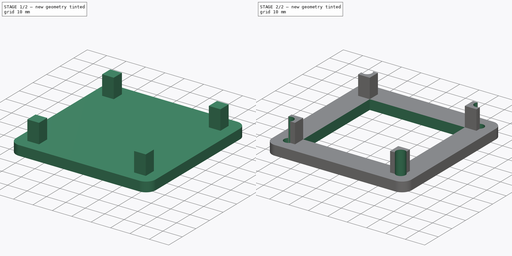
[diagram: build sequence overview — one tinted view per stage of 2, left to right]
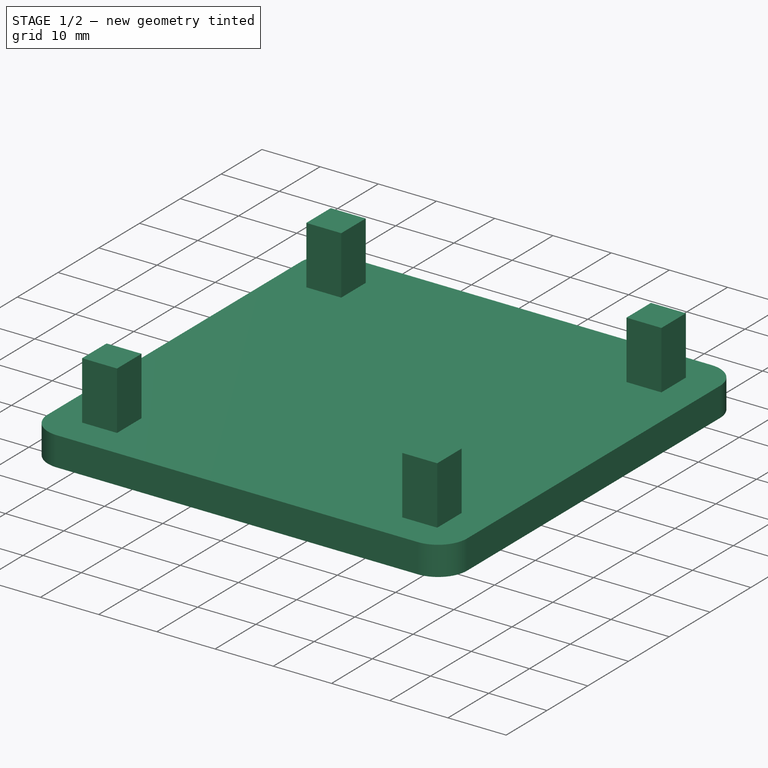
[diagram: stage 1 of 2 — iso view after this stage's code; geometry added in this stage tinted green]
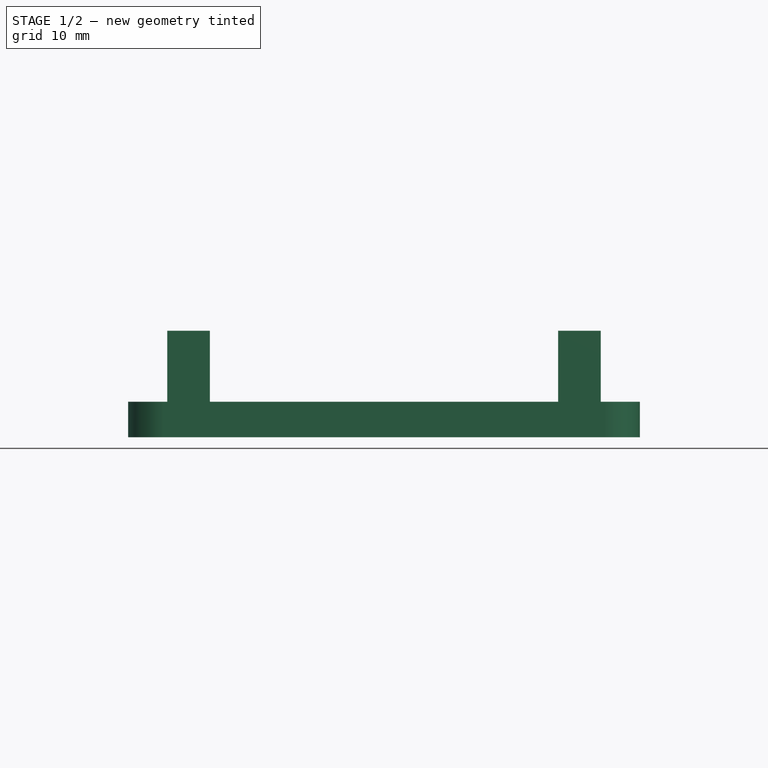
[diagram: stage 1 of 2 — front view after this stage's code; geometry added in this stage tinted green]
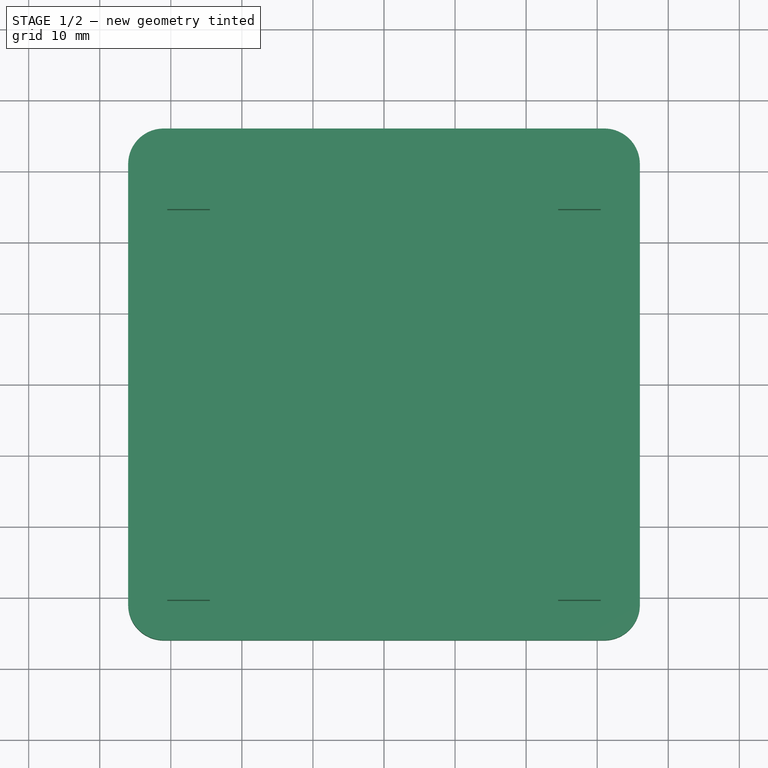
[diagram: stage 1 of 2 — top view after this stage's code; geometry added in this stage tinted green]
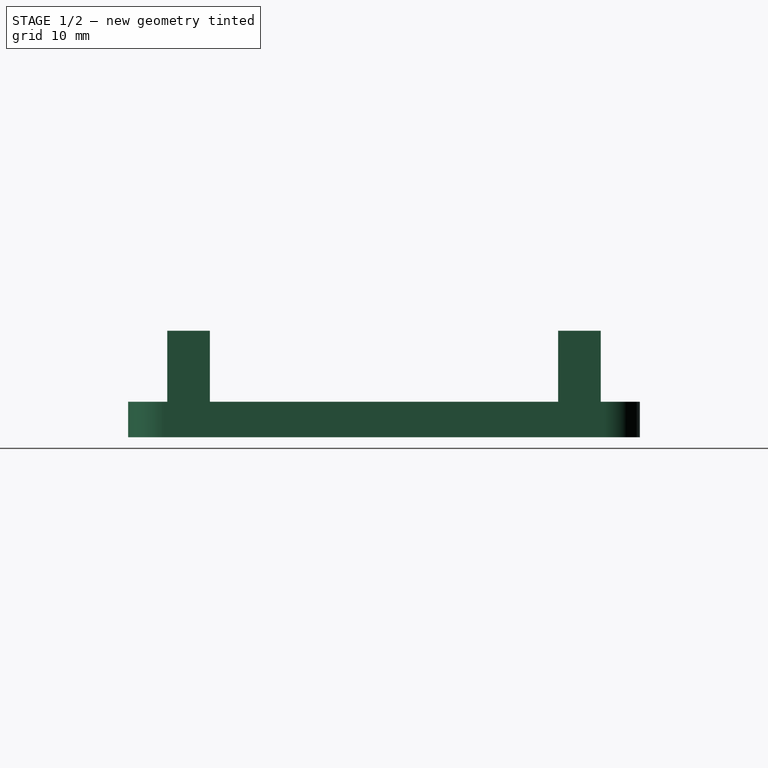
[diagram: stage 1 of 2 — right view after this stage's code; geometry added in this stage tinted green]
FCSTD DOCUMENT  (FreeCAD 1.0R38806 (Git))
Label: screwdown_mount_magnetic
License: All rights reserved
LicenseURL: https://en.wikipedia.org/wiki/All_rights_reserved
objects: Sketcher::SketchObject×4, PartDesign::Pad×2, PartDesign::Pocket×2, Spreadsheet::Sheet×1, PartDesign::Body×1
note: 21 computed .brp shape members not serialized (recipe doc carries the construction recipe); baked Part::Feature solids carry a one-line shape summary decoded from their .brp

FEATURE [Spreadsheet::Sheet] Spreadsheet  label="settings"
  cells = A1='Total box size; B1(total_box_dim)=72; C1='Inner post spacing; D1(inner_post_space)=61; E1='hole spacing; F1(hole_spacing)=81.6; A2='top plate thickness; B2(top_plate_thick)=5; C2='Inner post dimensions; D2(inner_post_dim)=6; E2='hole dia; F2(hole_dia)=5; A3='top plate chamfer; B3(top_plate_chamfer)=5; C3='Inner post height; D3(inner_post_height)=10; A9='Calculations:; A10='plate chamfer inner; B10(top_plate_size_chamfered)==total_box_dim - top_plate_chamfer * 2; C10='inner post space - dim; D10(inner_post_space_dim)==inner_post_space - inner_post_dim * 2
FEATURE [Sketcher::SketchObject] Sketch
  ArcFitTolerance = 1e-06
  AttachmentSupport = -> [XY_Plane]
  FullyConstrained = true
  MakeInternals = false
  MapMode = 5
  expr: Constraints[10] = <<settings>>.total_box_dim
  expr: Constraints[25] = <<settings>>.top_plate_size_chamfered
  sketch-geometry (16):
    g0: LineSegment [constr] StartX=-36 StartY=-36 StartZ=0 EndX=36 EndY=-36 EndZ=0
    g1: LineSegment [constr] StartX=36 StartY=-36 StartZ=0 EndX=36 EndY=36 EndZ=0
    g2: LineSegment [constr] StartX=36 StartY=36 StartZ=0 EndX=-36 EndY=36 EndZ=0
    g3: LineSegment [constr] StartX=-36 StartY=36 StartZ=0 EndX=-36 EndY=-36 EndZ=0
    g4: ArcOfCircle CenterX=-31 CenterY=31 CenterZ=0 NormalX=0 NormalY=0 NormalZ=1 AngleXU=0 Radius=5 StartAngle=1.5708 EndAngle=3.14159
    g5: LineSegment [constr] StartX=-31 StartY=31 StartZ=0 EndX=-31 EndY=-31 EndZ=0
    g6: LineSegment [constr] StartX=-31 StartY=-31 StartZ=0 EndX=31 EndY=-31 EndZ=0
    g7: LineSegment [constr] StartX=31 StartY=-31 StartZ=0 EndX=31 EndY=31 EndZ=0
    g8: LineSegment [constr] StartX=31 StartY=31 StartZ=0 EndX=-31 EndY=31 EndZ=0
    g9: ArcOfCircle CenterX=-31 CenterY=-31 CenterZ=0 NormalX=0 NormalY=0 NormalZ=1 AngleXU=0 Radius=5 StartAngle=3.14159 EndAngle=4.71239
    g10: ArcOfCircle CenterX=31 CenterY=-31 CenterZ=0 NormalX=0 NormalY=0 NormalZ=1 AngleXU=0 Radius=5 StartAngle=4.71239 EndAngle=6.28319
    g11: ArcOfCircle CenterX=31 CenterY=31 CenterZ=0 NormalX=0 NormalY=0 NormalZ=1 AngleXU=0 Radius=5 StartAngle=0 EndAngle=1.5708
    g12: LineSegment StartX=-36 StartY=31 StartZ=0 EndX=-36 EndY=-31 EndZ=0
    g13: LineSegment StartX=-31 StartY=-36 StartZ=0 EndX=31 EndY=-36 EndZ=0
    g14: LineSegment StartX=36 StartY=-31 StartZ=0 EndX=36 EndY=31 EndZ=0
    g15: LineSegment StartX=31 StartY=36 StartZ=0 EndX=-31 EndY=36 EndZ=0
  constraints (44):
    c: Coincident(g0,g1)
    c: Coincident(g1,g2)
    c: Coincident(g2,g3)
    c: Coincident(g3,g0)
    c: Horizontal(g0)
    c: Horizontal(g2)
    c: Vertical(g1)
    c: Vertical(g3)
    c: Symmetric(g0,g2,g-1)
    c: Equal(g1,g0)
    c: DistanceX(g0,g0) = 72
    c: PointOnObject(g4,g2)
    c: PointOnObject(g4,g3)
    c: Vertical(g4,g4)
    c: Horizontal(g4,g4)
    c: Coincident(g5,g6)
    c: Coincident(g6,g7)
    c: Coincident(g7,g8)
    c: Coincident(g8,g5)
    c: Vertical(g5)
    c: Vertical(g7)
    c: Horizontal(g6)
    c: Horizontal(g8)
    c: Coincident(g4,g5)
    c: Symmetric(g7,g5,g-1)
    c: DistanceX(g6,g6) = 62
    c: Coincident(g11,g7)
    c: Coincident(g10,g6)
    c: Coincident(g9,g5)
    c: Vertical(g5,g9)
    c: Horizontal(g9,g5)
    c: PointOnObject(g9,g3)
    c: Vertical(g10,g6)
    c: Horizontal(g10,g6)
    c: Horizontal(g11,g7)
    c: Vertical(g11,g7)
    c: Coincident(g12,g4)
    c: Coincident(g12,g9)
    c: Tangent(g13,g9) = -1.5708
    c: Coincident(g13,g10)
    c: Coincident(g14,g10)
    c: Coincident(g14,g11)
    c: Tangent(g15,g11) = -1.5708
    c: Coincident(g15,g4)
FEATURE [PartDesign::Pad] Pad  label="main_plate"
  Direction = (0,0,1)
  Length = 5
  Length2 = 10
  Profile = -> Sketch
  ReferenceAxis = -> Sketch [N_Axis]
  Refine = true
  Suppressed = false
  Type = 0
  expr: Length = <<settings>>.top_plate_thick
FEATURE [Sketcher::SketchObject] Sketch001
  ArcFitTolerance = 1e-06
  AttachmentSupport = -> [Pad]
  FullyConstrained = true
  MakeInternals = false
  MapMode = 5
  Placement = pos=(0,0,5) rot=(0,0,1;0rad)
  expr: Constraints[10] = <<settings>>.inner_post_space
  expr: Constraints[57] = <<settings>>.inner_post_space_dim
  sketch-geometry (24):
    g0: LineSegment [constr] StartX=-30.5 StartY=30.5 StartZ=0 EndX=-30.5 EndY=-30.5 EndZ=0
    g1: LineSegment [constr] StartX=-30.5 StartY=-30.5 StartZ=0 EndX=30.5 EndY=-30.5 EndZ=0
    g2: LineSegment [constr] StartX=30.5 StartY=-30.5 StartZ=0 EndX=30.5 EndY=30.5 EndZ=0
    g3: LineSegment [constr] StartX=30.5 StartY=30.5 StartZ=0 EndX=-30.5 EndY=30.5 EndZ=0
    g4: LineSegment StartX=-30.5 StartY=30.5 StartZ=0 EndX=-30.5 EndY=24.5 EndZ=0
    g5: LineSegment StartX=-30.5 StartY=24.5 StartZ=0 EndX=-24.5 EndY=24.5 EndZ=0
    g6: LineSegment StartX=-24.5 StartY=24.5 StartZ=0 EndX=-24.5 EndY=30.5 EndZ=0
    g7: LineSegment StartX=-24.5 StartY=30.5 StartZ=0 EndX=-30.5 EndY=30.5 EndZ=0
    g8: LineSegment StartX=30.5 StartY=30.5 StartZ=0 EndX=24.5 EndY=30.5 EndZ=0
    g9: LineSegment StartX=24.5 StartY=30.5 StartZ=0 EndX=24.5 EndY=24.5 EndZ=0
    g10: LineSegment StartX=24.5 StartY=24.5 StartZ=0 EndX=30.5 EndY=24.5 EndZ=0
    g11: LineSegment StartX=30.5 StartY=24.5 StartZ=0 EndX=30.5 EndY=30.5 EndZ=0
    g12: LineSegment StartX=30.5 StartY=-30.5 StartZ=0 EndX=30.5 EndY=-24.5 EndZ=0
    g13: LineSegment StartX=30.5 StartY=-24.5 StartZ=0 EndX=24.5 EndY=-24.5 EndZ=0
    g14: LineSegment StartX=24.5 StartY=-24.5 StartZ=0 EndX=24.5 EndY=-30.5 EndZ=0
    g15: LineSegment StartX=24.5 StartY=-30.5 StartZ=0 EndX=30.5 EndY=-30.5 EndZ=0
    g16: LineSegment StartX=-30.5 StartY=-30.5 StartZ=0 EndX=-24.5 EndY=-30.5 EndZ=0
    g17: LineSegment StartX=-24.5 StartY=-30.5 StartZ=0 EndX=-24.5 EndY=-24.5 EndZ=0
    g18: LineSegment StartX=-24.5 StartY=-24.5 StartZ=0 EndX=-30.5 EndY=-24.5 EndZ=0
    g19: LineSegment StartX=-30.5 StartY=-24.5 StartZ=0 EndX=-30.5 EndY=-30.5 EndZ=0
    g20: LineSegment [constr] StartX=-24.5 StartY=24.5 StartZ=0 EndX=-24.5 EndY=-24.5 EndZ=0
    g21: LineSegment [constr] StartX=-24.5 StartY=-24.5 StartZ=0 EndX=24.5 EndY=-24.5 EndZ=0
    g22: LineSegment [constr] StartX=24.5 StartY=-24.5 StartZ=0 EndX=24.5 EndY=24.5 EndZ=0
    g23: LineSegment [constr] StartX=24.5 StartY=24.5 StartZ=0 EndX=-24.5 EndY=24.5 EndZ=0
  constraints (62):
    c: Coincident(g0,g1)
    c: Coincident(g1,g2)
    c: Coincident(g2,g3)
    c: Coincident(g3,g0)
    c: Vertical(g0)
    c: Vertical(g2)
    c: Horizontal(g1)
    c: Horizontal(g3)
    c: Symmetric(g2,g0,g-1)
    c: Equal(g3,g0)
    c: DistanceX(g1,g1) = 61
    c: Coincident(g4,g5)
    c: Coincident(g5,g6)
    c: Coincident(g6,g7)
    c: Coincident(g7,g4)
    c: Vertical(g4)
    c: Vertical(g6)
    c: Horizontal(g5)
    c: Horizontal(g7)
    c: Coincident(g4,g0)
    c: Coincident(g8,g9)
    c: Coincident(g9,g10)
    c: Coincident(g10,g11)
    c: Coincident(g11,g8)
    c: Horizontal(g8)
    c: Horizontal(g10)
    c: Vertical(g9)
    c: Vertical(g11)
    c: Coincident(g8,g2)
    c: Coincident(g12,g13)
    c: Coincident(g13,g14)
    c: Coincident(g14,g15)
    c: Coincident(g15,g12)
    c: Vertical(g12)
    c: Vertical(g14)
    c: Horizontal(g13)
    c: Horizontal(g15)
    c: Coincident(g12,g1)
    c: Coincident(g16,g17)
    c: Coincident(g17,g18)
    c: Coincident(g18,g19)
    c: Coincident(g19,g16)
    c: Horizontal(g16)
    c: Horizontal(g18)
    c: Vertical(g17)
    c: Vertical(g19)
    c: Coincident(g16,g0)
    c: Coincident(g20,g21)
    c: Coincident(g21,g22)
    c: Coincident(g22,g23)
    c: Coincident(g23,g20)
    c: Vertical(g20)
    c: Vertical(g22)
    c: Horizontal(g21)
    c: Horizontal(g23)
    c: Symmetric(g22,g20,g-1)
    c: Equal(g23,g20)
    c: DistanceX(g21,g21) = 49
    c: Coincident(g17,g20)
    c: Coincident(g13,g21)
    c: Coincident(g9,g22)
    c: Coincident(g5,g20)
FEATURE [PartDesign::Pad] Pad001  label="posts"
  BaseFeature = -> Pad
  Direction = (0,0,1)
  Length = 10
  Length2 = 10
  Profile = -> Sketch001
  ReferenceAxis = -> Sketch001 [N_Axis]
  Refine = true
  Suppressed = false
  Type = 0
  expr: Length = <<settings>>.inner_post_height
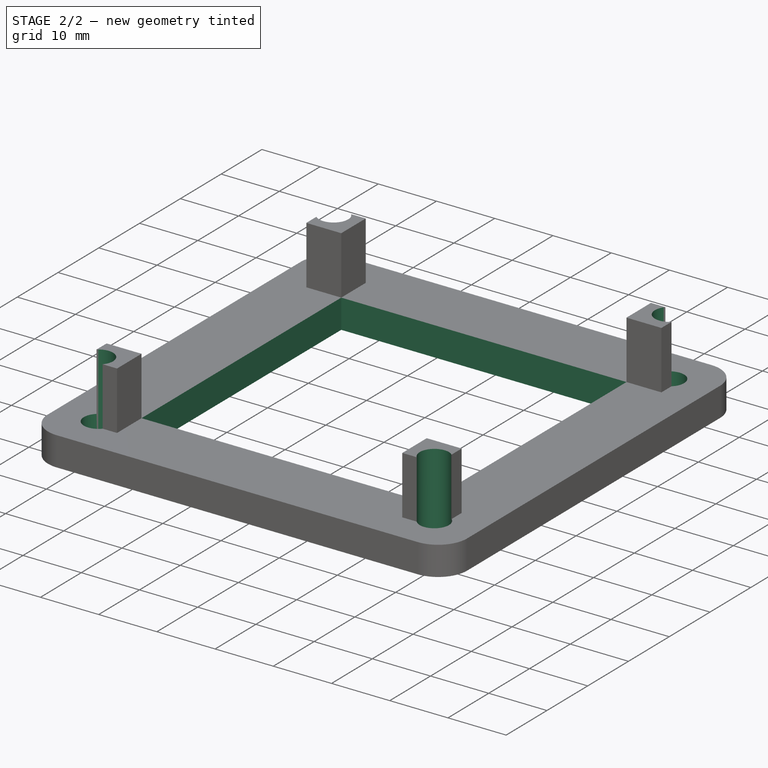
[diagram: stage 2 of 2 — iso view after this stage's code; geometry added in this stage tinted green]
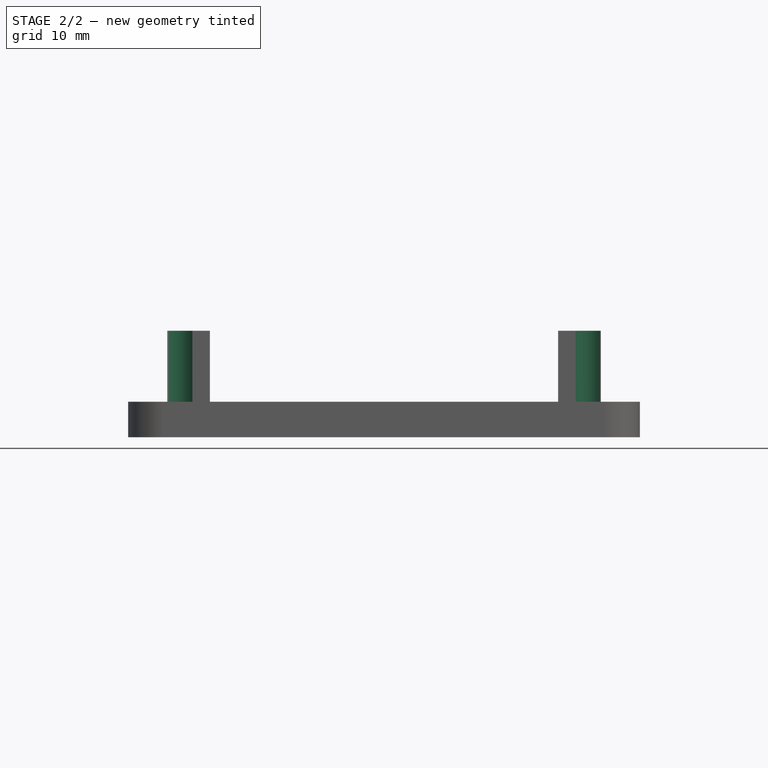
[diagram: stage 2 of 2 — front view after this stage's code; geometry added in this stage tinted green]
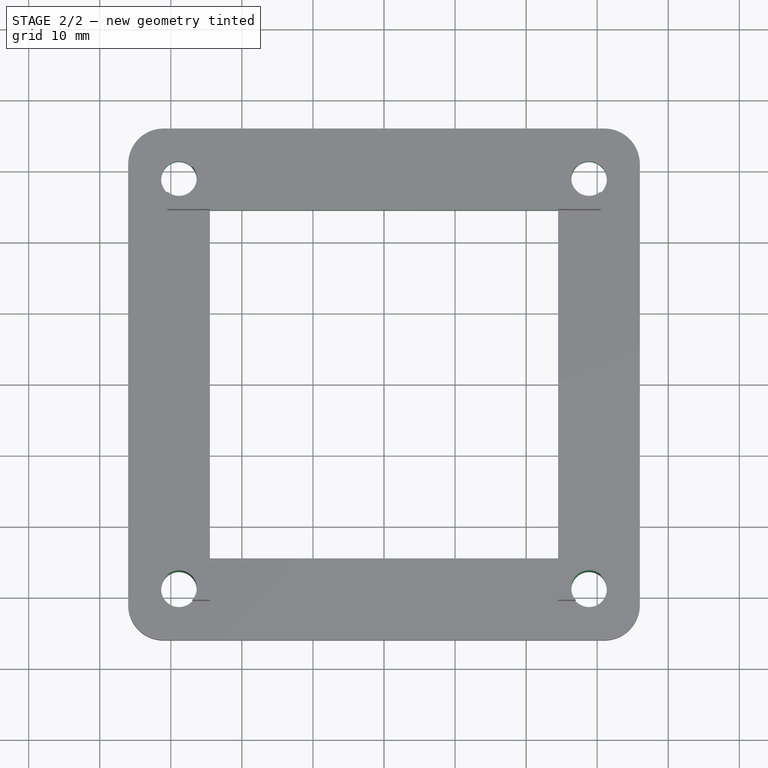
[diagram: stage 2 of 2 — top view after this stage's code; geometry added in this stage tinted green]
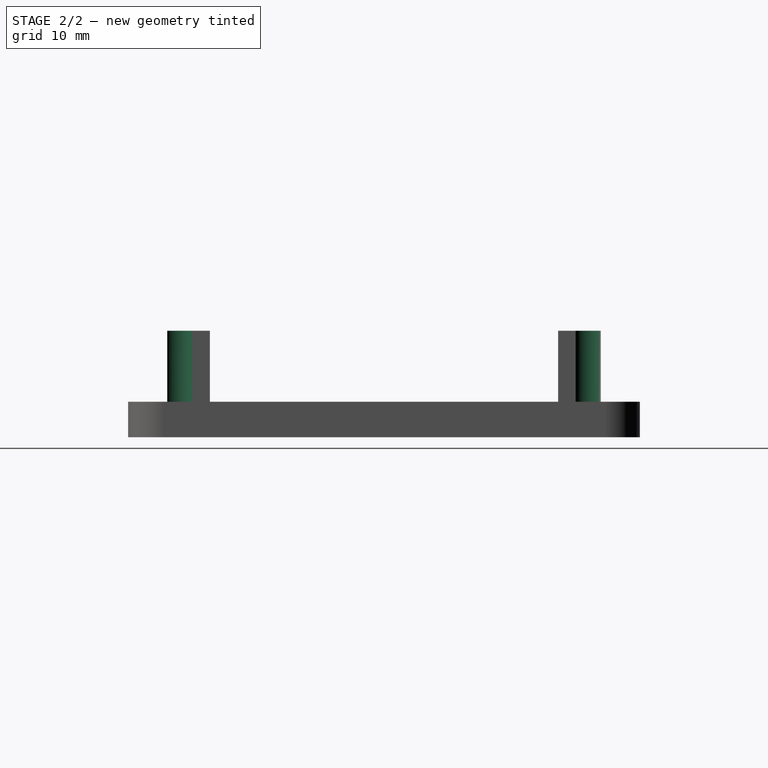
[diagram: stage 2 of 2 — right view after this stage's code; geometry added in this stage tinted green]
FEATURE [Sketcher::SketchObject] Sketch002
  ArcFitTolerance = 1e-06
  AttachmentSupport = -> [Pad001]
  FullyConstrained = true
  MakeInternals = false
  MapMode = 5
  Placement = pos=(0,0,5) rot=(0,0,1;0rad)
  expr: Constraints[10] = <<settings>>.inner_post_space_dim
  sketch-geometry (4):
    g0: LineSegment StartX=-24.5 StartY=24.5 StartZ=0 EndX=-24.5 EndY=-24.5 EndZ=0
    g1: LineSegment StartX=-24.5 StartY=-24.5 StartZ=0 EndX=24.5 EndY=-24.5 EndZ=0
    g2: LineSegment StartX=24.5 StartY=-24.5 StartZ=0 EndX=24.5 EndY=24.5 EndZ=0
    g3: LineSegment StartX=24.5 StartY=24.5 StartZ=0 EndX=-24.5 EndY=24.5 EndZ=0
  constraints (11):
    c: Coincident(g0,g1)
    c: Coincident(g1,g2)
    c: Coincident(g2,g3)
    c: Coincident(g3,g0)
    c: Vertical(g0)
    c: Vertical(g2)
    c: Horizontal(g1)
    c: Horizontal(g3)
    c: Symmetric(g2,g0,g-1)
    c: Equal(g3,g0)
    c: DistanceX(g1,g1) = 49
FEATURE [PartDesign::Pocket] Pocket  label="center_opening"
  BaseFeature = -> Pad001
  Direction = (0,0,-1)
  Length = 5
  Length2 = 5
  Profile = -> Sketch002
  ReferenceAxis = -> Sketch002 [N_Axis]
  Refine = true
  Suppressed = false
  Type = 1
FEATURE [Sketcher::SketchObject] Sketch003
  ArcFitTolerance = 1e-06
  AttachmentSupport = -> [Pocket]
  FullyConstrained = true
  MakeInternals = false
  MapMode = 5
  Placement = pos=(0,0,0) rot=(1,0,0;3.14159rad)
  expr: Constraints[10] = <<settings>>.hole_spacing
  expr: Constraints[18] = <<settings>>.hole_dia
  sketch-geometry (8):
    g0: LineSegment [constr] StartX=-28.85 StartY=28.85 StartZ=0 EndX=-28.85 EndY=-28.85 EndZ=0
    g1: LineSegment [constr] StartX=-28.85 StartY=-28.85 StartZ=0 EndX=28.85 EndY=-28.85 EndZ=0
    g2: LineSegment [constr] StartX=28.85 StartY=-28.85 StartZ=0 EndX=28.85 EndY=28.85 EndZ=0
    g3: LineSegment [constr] StartX=28.85 StartY=28.85 StartZ=0 EndX=-28.85 EndY=28.85 EndZ=0
    g4: Circle CenterX=-28.85 CenterY=28.85 CenterZ=0 NormalX=0 NormalY=0 NormalZ=1 AngleXU=0 Radius=2.5
    g5: Circle CenterX=28.85 CenterY=28.85 CenterZ=0 NormalX=0 NormalY=0 NormalZ=1 AngleXU=0 Radius=2.5
    g6: Circle CenterX=28.85 CenterY=-28.85 CenterZ=0 NormalX=0 NormalY=0 NormalZ=1 AngleXU=0 Radius=2.5
    g7: Circle CenterX=-28.85 CenterY=-28.85 CenterZ=0 NormalX=0 NormalY=0 NormalZ=1 AngleXU=0 Radius=2.5
  constraints (19):
    c: Coincident(g0,g1)
    c: Coincident(g1,g2)
    c: Coincident(g2,g3)
    c: Coincident(g3,g0)
    c: Vertical(g0)
    c: Vertical(g2)
    c: Horizontal(g1)
    c: Horizontal(g3)
    c: Symmetric(g2,g0,g-1)
    c: Equal(g1,g2)
    c: Distance(g0,g2) = 81.6
    c: Coincident(g4,g0)
    c: Coincident(g5,g2)
    c: Coincident(g6,g1)
    c: Coincident(g7,g0)
    c: Equal(g4,g5)
    c: Equal(g7,g4)
    c: Equal(g4,g6)
    c: Diameter(g4) = 5
FEATURE [PartDesign::Pocket] Pocket001  label="mounting_holes"
  BaseFeature = -> Pocket
  Direction = (0,0,1)
  Length = 5
  Length2 = 5
  Profile = -> Sketch003
  ReferenceAxis = -> Sketch003 [N_Axis]
  Refine = true
  Suppressed = false
  Type = 1
FEATURE [PartDesign::Body] Body
  AllowCompound = false
  Group = -> [Sketch,Pad,Sketch001,Pad001,Sketch002,Pocket,Sketch003,Pocket001]
  Origin = -> Origin
  Tip = -> Pocket001
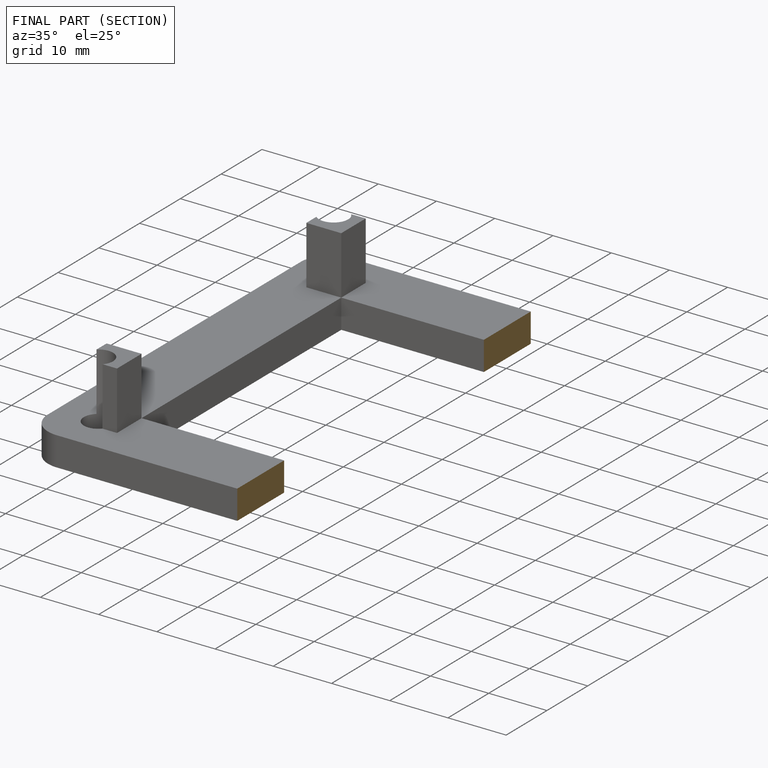
[diagram: finished part — half-section view (interior)]
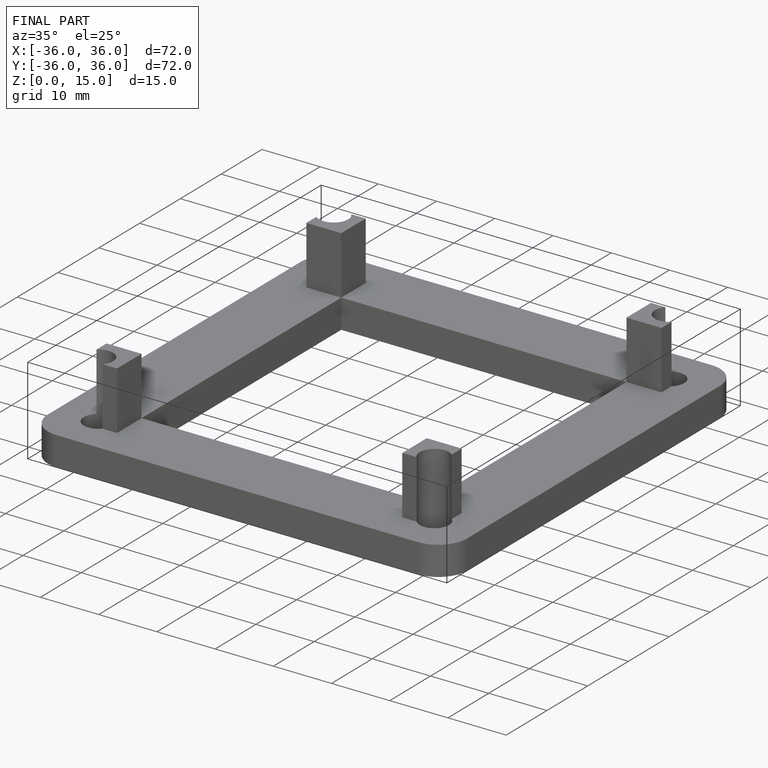
[diagram: finished part — iso view with bounding-box wireframe]
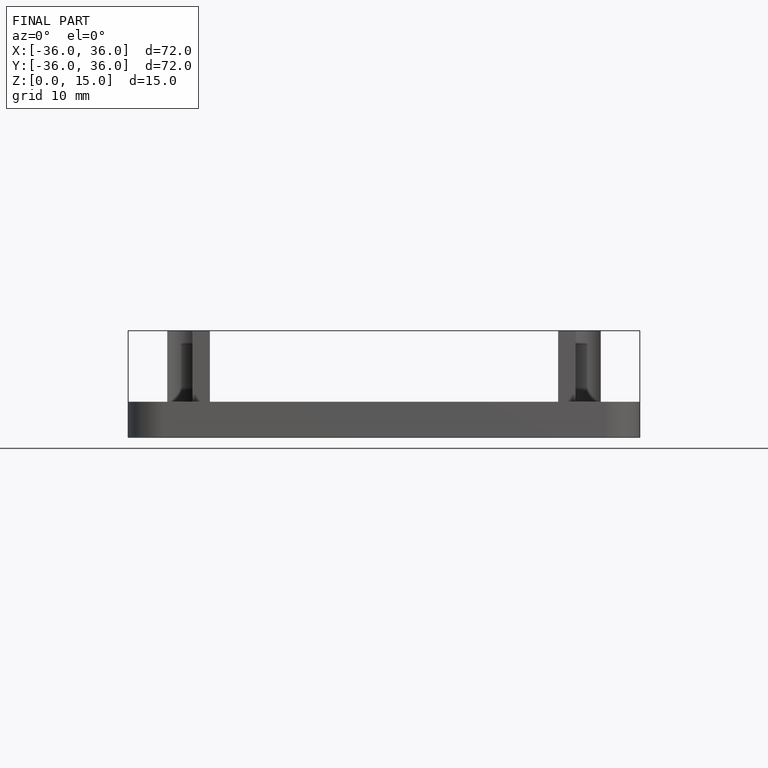
[diagram: finished part — front view with bounding-box wireframe]
